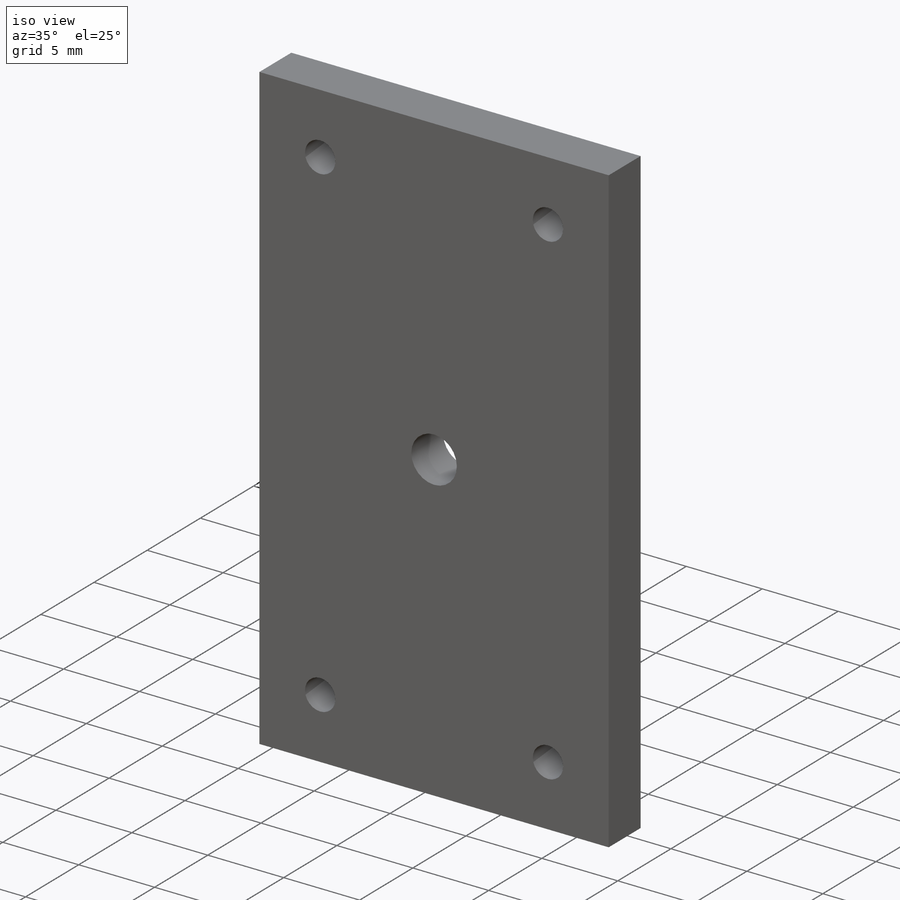
[diagram: iso view]
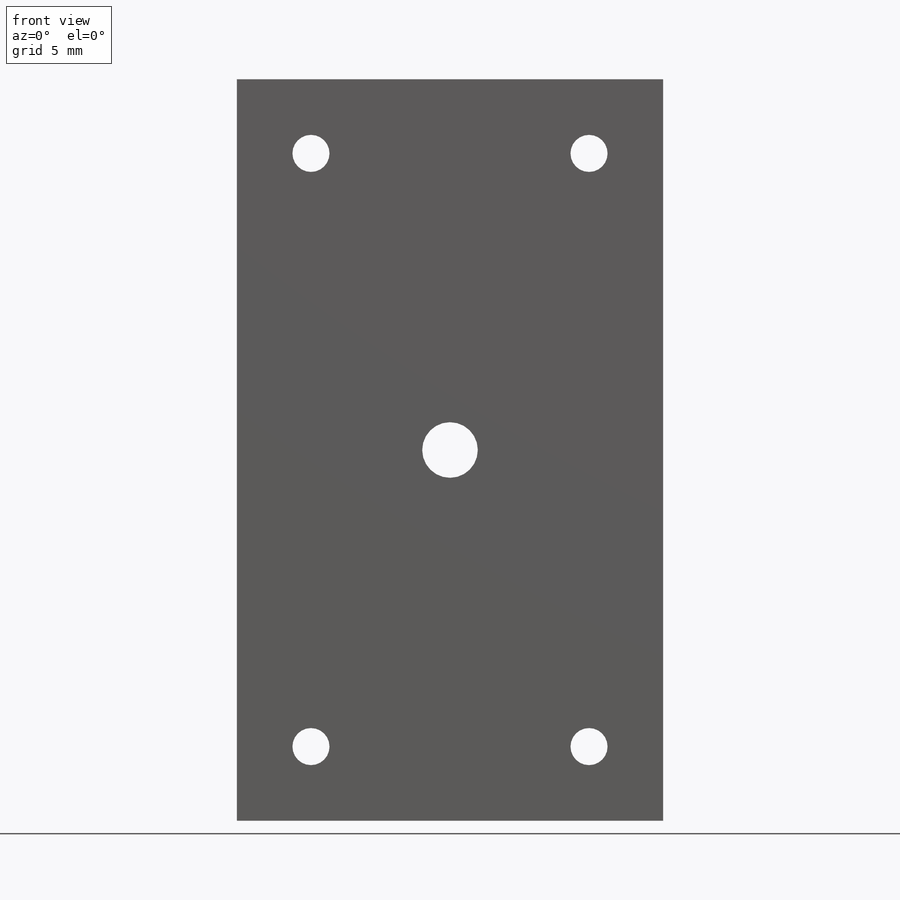
[diagram: front view]
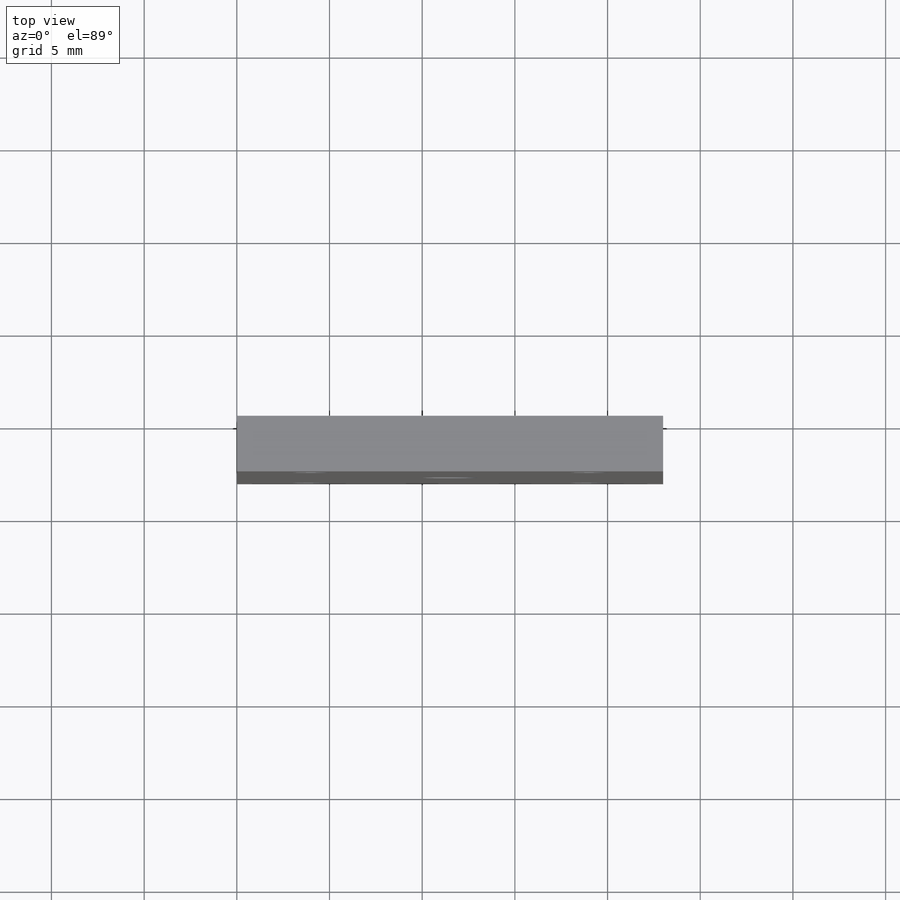
[diagram: top view]
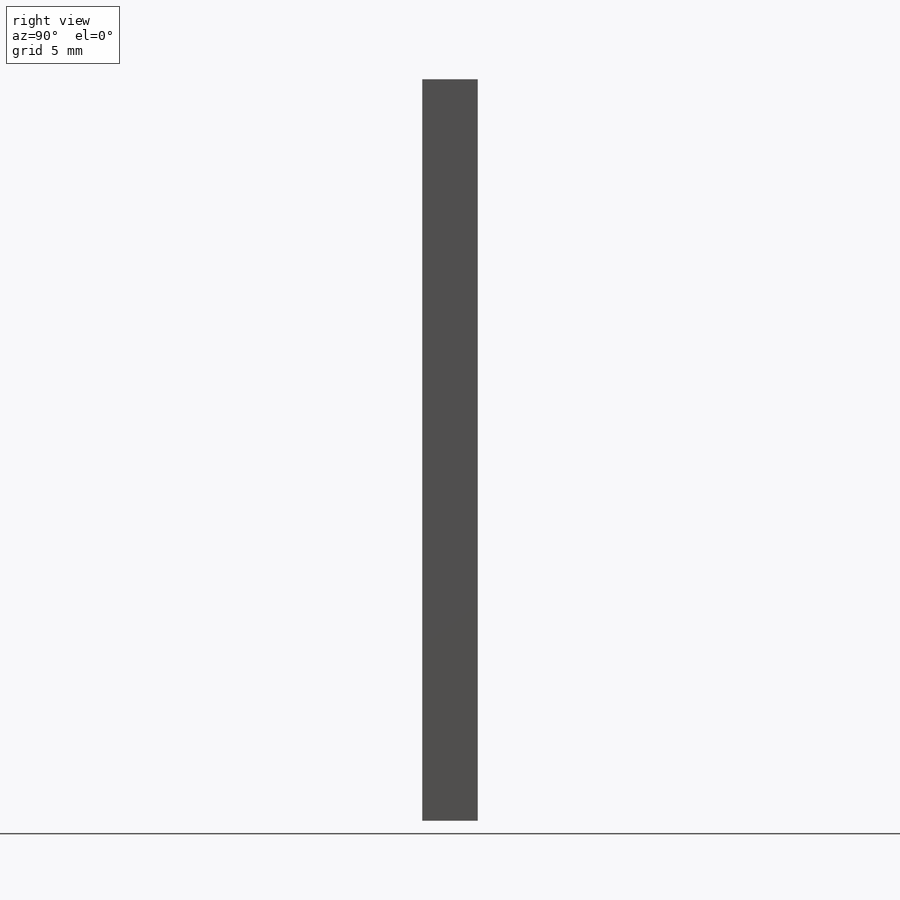
[diagram: right view]
SOLIDWORKS PART (.sldprt)
format: sldprt  version: not decoded by parser v0  size: 312,832 bytes
history: native  units: mm
features: plane x5, sketch x4, cut_extrude x3, material x1, extrude x1, mirror x1 (+9 scaffold rows collapsed)
feature tree (24):
  scaffold x9  (default folders/planes/origin — collapsed)
  material  "Material <not specified>"
  plane  "Plan de face"
  plane  "Plan de dessus"
  plane  "Plan de droite"
  sketch  "Sketch1"  dims[D1=23.0mm D2=40.0mm]
  extrude  "Boss-Extrude1"  Depth=3mm
  sketch  "Sketch2"  dims[D1=3.0mm]
  cut_extrude  "Cut-Extrude1"  [1 undecoded]
  plane  "Plane1"
  sketch  "Sketch3"  dims[c1.D1=0.15mm c1.D2=1.0mm c1.D3=0.555mm c2.D2=1.0mm c2.D3=0.555mm c2.D1=0.15mm c2.D4=0.4mm c2.D5=~0.563761mm c3.D4=0.4mm c3.D5=1.0mm c4.D4=0.4mm c4.D5=0.75mm c4.D6=1.0mm c5.D5=1.0mm c5.D6=7.0]
  cut_extrude  "Cut-Extrude4"  Depth=5mm
  plane  "Plane2"
  mirror  "Mirror1"
  sketch  "Sketch4"  dims[D1=2.0mm D2=2.0mm D3=4.0mm D4=4.0mm D5=4.0mm D6=4.0mm]
  cut_extrude  "Cut-Extrude5"  [1 undecoded]
decode coverage: 6 of 9 modeling features carry decoded parameters
note: ~ marks probable driven/reference dimensions
note: 2 parameter values undecoded
note: suppression state not decoded; provenance and decode notes live in map.json
